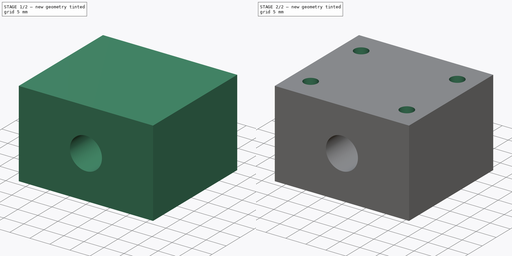
[diagram: build sequence overview — one tinted view per stage of 2, left to right]
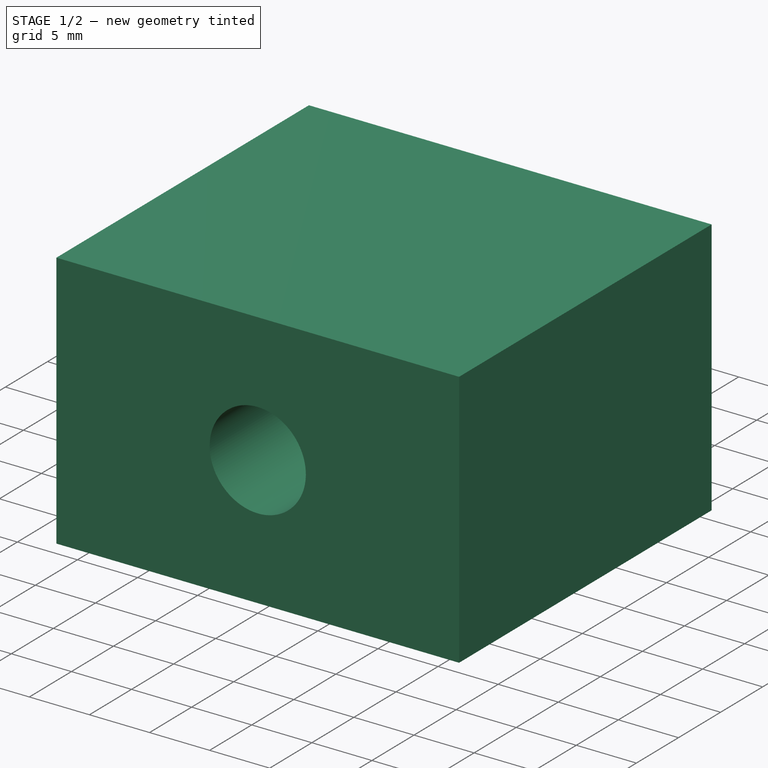
[diagram: stage 1 of 2 — iso view after this stage's code; geometry added in this stage tinted green]
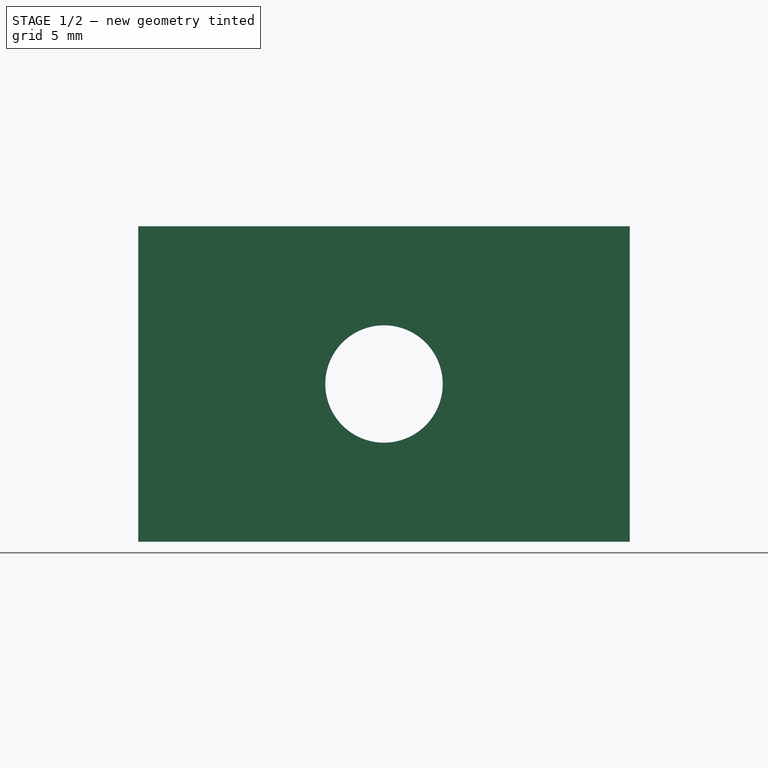
[diagram: stage 1 of 2 — front view after this stage's code; geometry added in this stage tinted green]
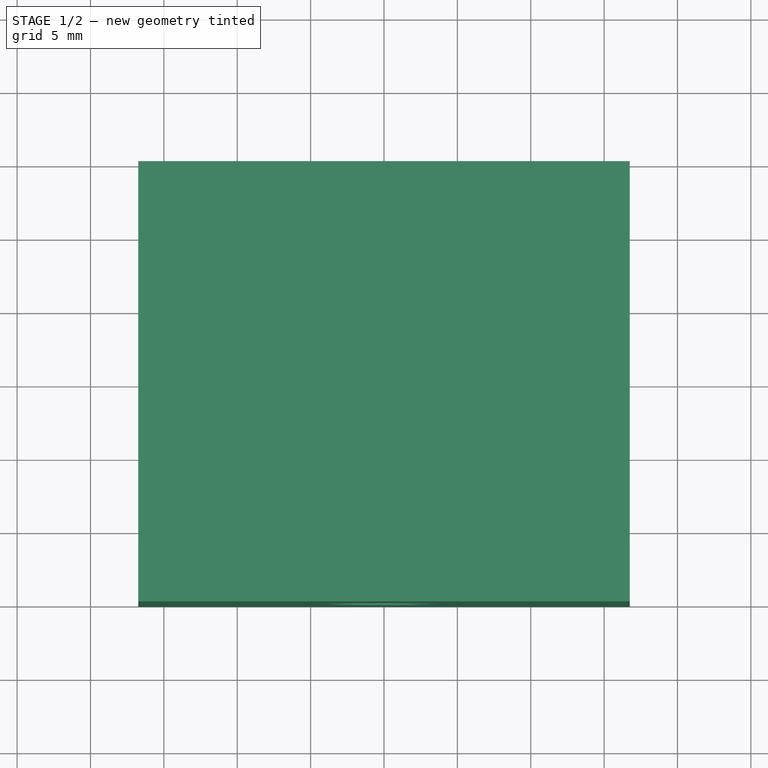
[diagram: stage 1 of 2 — top view after this stage's code; geometry added in this stage tinted green]
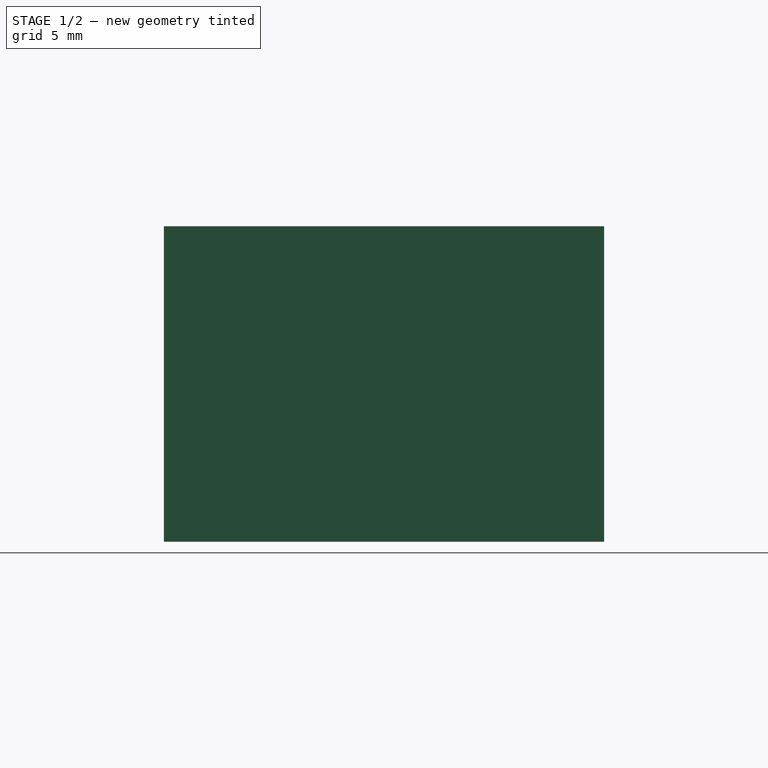
[diagram: stage 1 of 2 — right view after this stage's code; geometry added in this stage tinted green]
FCSTD DOCUMENT  (FreeCAD 0.16R6706 (Git))
Label: PillowRolamentoVeritical
License: All rights reserved
LicenseURL: http://en.wikipedia.org/wiki/All_rights_reserved
objects: Drawing::FeatureViewPython×13, Drawing::FeatureViewPart×3, Sketcher::SketchObject×2, PartDesign::Pad×1, PartDesign::Pocket×1, Drawing::FeaturePage×1
note: 6 computed .brp shape members not serialized (recipe doc carries the construction recipe); baked Part::Feature solids carry a one-line shape summary decoded from their .brp

FEATURE [Sketcher::SketchObject] Sketch
  Placement = pos=(0,0,0) rot=(1,0,0;1.5708rad)
  sketch-geometry (5):
    g0: LineSegment StartX=-16.75 StartY=10.75 StartZ=0 EndX=16.75 EndY=10.75 EndZ=0
    g1: LineSegment StartX=16.75 StartY=10.75 StartZ=0 EndX=16.75 EndY=-10.75 EndZ=0
    g2: LineSegment StartX=16.75 StartY=-10.75 StartZ=0 EndX=-16.75 EndY=-10.75 EndZ=0
    g3: LineSegment StartX=-16.75 StartY=-10.75 StartZ=0 EndX=-16.75 EndY=10.75 EndZ=0
    g4: Circle CenterX=0 CenterY=0 CenterZ=0 NormalX=0 NormalY=0 NormalZ=1 Radius=4
  constraints (13):
    c: Coincident(g0,g1)
    c: Coincident(g1,g2)
    c: Coincident(g2,g3)
    c: Coincident(g3,g0)
    c: Horizontal(g0)
    c: Horizontal(g2)
    c: Vertical(g1)
    c: Vertical(g3)
    c: Symmetric(g0,g1,g-1)
    c: DistanceX(g0,g0) = 33.5
    c: DistanceY(g1,g1) = 21.5
    c: Radius(g4) = 4
    c: Coincident(g-1,g4)
FEATURE [PartDesign::Pad] Pad
  Length = 30
  Length2 = 100
  Placement = pos=(0,0,0) rot=(1,0,0;1.5708rad)
  Sketch = -> Sketch
  Type = 0
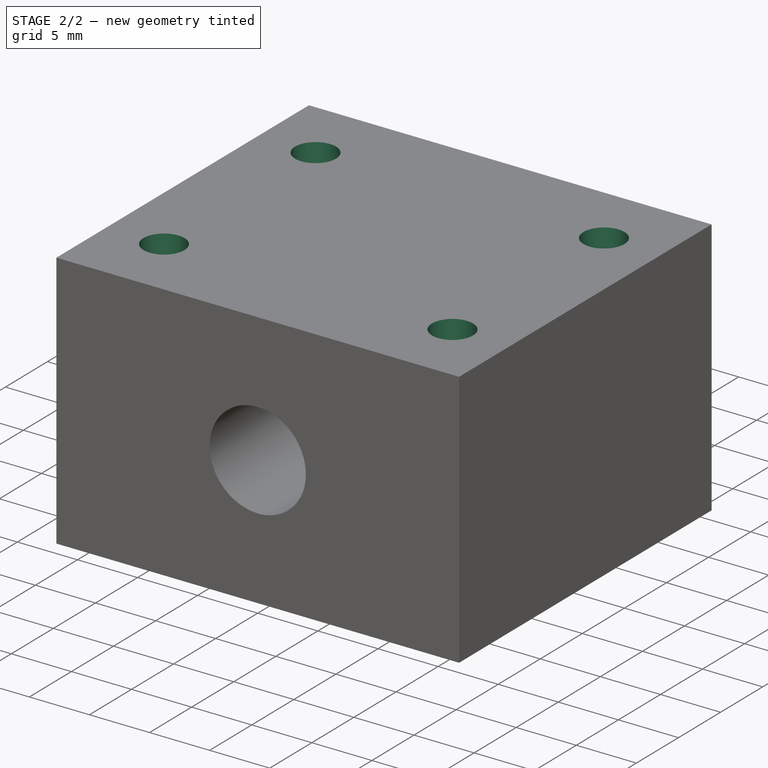
[diagram: stage 2 of 2 — iso view after this stage's code; geometry added in this stage tinted green]
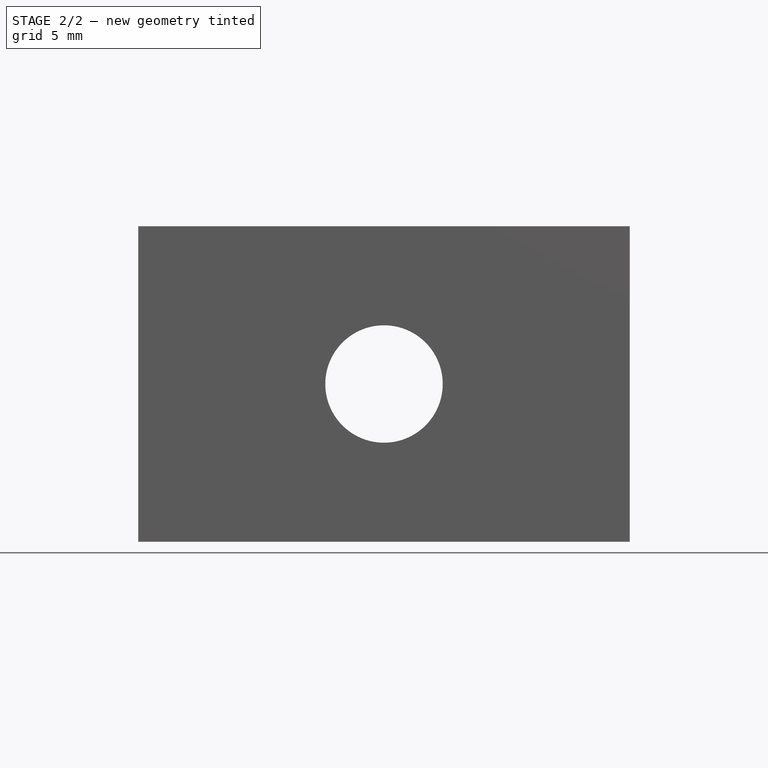
[diagram: stage 2 of 2 — front view after this stage's code; geometry added in this stage tinted green]
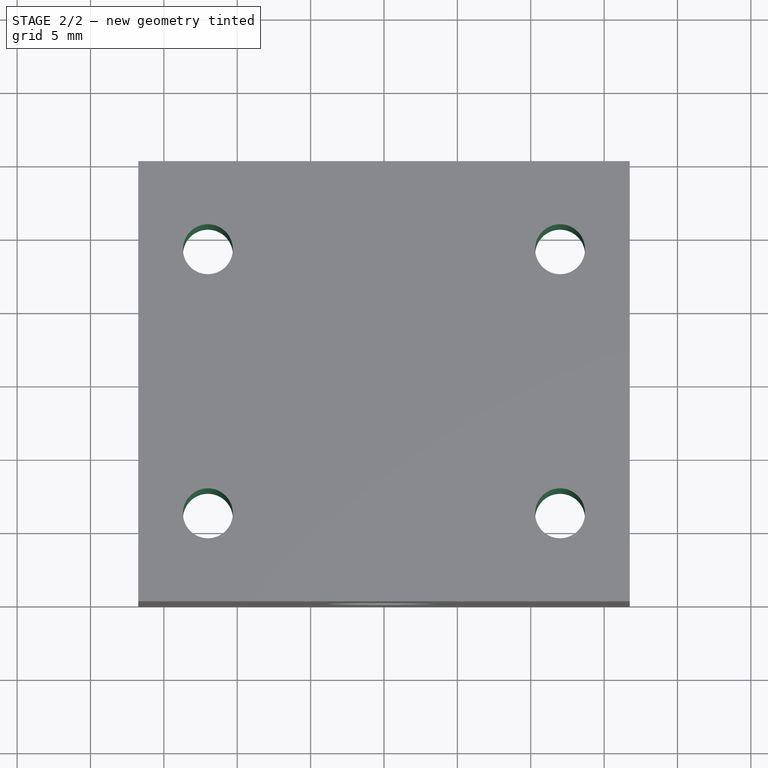
[diagram: stage 2 of 2 — top view after this stage's code; geometry added in this stage tinted green]
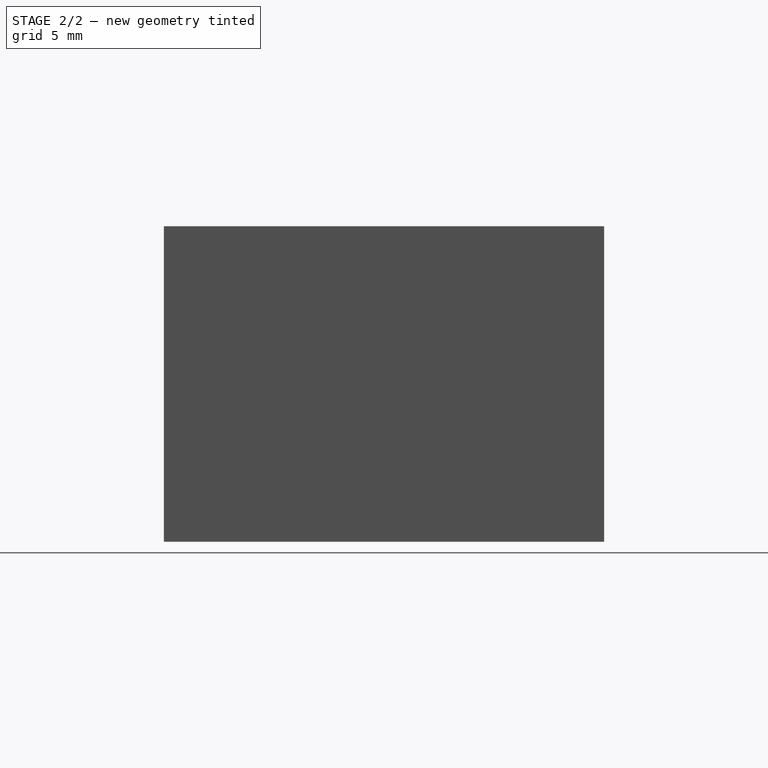
[diagram: stage 2 of 2 — right view after this stage's code; geometry added in this stage tinted green]
FEATURE [Sketcher::SketchObject] Sketch001
  ExternalGeometry = -> [Pad]
  Placement = pos=(0,0,-10.75) rot=(1,0,0;3.14159rad)
  Support = -> Pad [Face3]
  sketch-geometry (9):
    g0: LineSegment [constr] StartX=-12 StartY=24 StartZ=0 EndX=12 EndY=24 EndZ=0
    g1: LineSegment [constr] StartX=12 StartY=24 StartZ=0 EndX=12 EndY=6 EndZ=0
    g2: LineSegment [constr] StartX=12 StartY=6 StartZ=0 EndX=-12 EndY=6 EndZ=0
    g3: LineSegment [constr] StartX=-12 StartY=6 StartZ=0 EndX=-12 EndY=24 EndZ=0
    g4: Circle CenterX=-12 CenterY=24 CenterZ=0 NormalX=0 NormalY=0 NormalZ=1 Radius=1.7
    g5: Circle CenterX=12 CenterY=24 CenterZ=0 NormalX=0 NormalY=0 NormalZ=1 Radius=1.7
    g6: Circle CenterX=12 CenterY=6 CenterZ=0 NormalX=0 NormalY=0 NormalZ=1 Radius=1.7
    g7: Circle CenterX=-12 CenterY=6 CenterZ=0 NormalX=0 NormalY=0 NormalZ=1 Radius=1.7
    g8: LineSegment [constr] StartX=-13.6711 StartY=15 StartZ=0 EndX=12.5416 EndY=15 EndZ=0
  constraints (22):
    c: Coincident(g0,g1)
    c: Coincident(g1,g2)
    c: Coincident(g2,g3)
    c: Coincident(g3,g0)
    c: Horizontal(g0)
    c: Horizontal(g2)
    c: Vertical(g1)
    c: Vertical(g3)
    c: Radius(g4) = 1.7
    c: Coincident(g0,g4)
    c: Equal(g4,g5) = 1.7
    c: Equal(g4,g6) = 1.7
    c: Equal(g4,g7) = 1.7
    c: Coincident(g2,g7)
    c: Coincident(g1,g6)
    c: Coincident(g0,g5)
    c: Symmetric(g2,g1,g-2)
    c: Horizontal(g8)
    c: Symmetric(g-4,g-4,g8)
    c: Symmetric(g0,g1,g8)
    c: DistanceX(g0,g0) = 24
    c: DistanceY(g1,g1) = 18
FEATURE [PartDesign::Pocket] Pocket
  Length = 5
  Placement = pos=(0,0,0) rot=(1,0,0;1.5708rad)
  Sketch = -> Sketch001
  Type = 1
FEATURE [Drawing::FeatureViewPart] Ortho001  label="Ortho_-1_1"
  Direction = (0.57735,-0.57735,0.57735)
  HiddenWidth = 0.15
  LineWidth = 0.35
  Rotation = 60
  Scale = 2
  ShowHiddenLines = false
  ShowSmoothLines = false
  Source = -> Pocket
  Tolerance = 0.05
  ViewResult = <g id="Ortho_-1_1"\n   transform="rotate(60,82.3799,83.5859) translate(82.3799,83.5859) scale(2,2)"\n  >\n<g   stroke="rgb(0, 0, 0)"\n   stroke-width="0.175"\n   stroke-linecap="butt"\n   stroke-linejoin="miter"\n   fill="none"\n   transform="scale(1,-1)"\n  >\n<path id= "1" d=" M -19.4454 -2.44949 L -19.4454 -26.9444 " />\n<path id= "2" d=" M -19.4454 -2.44949 L 4.24264 11.2268 " />\n<path id= "3" d=" M -19.4454 -26.9444 L 4.24264 -13.2681 " />\n<path id= "4" d=" M 4.24264 11.2268 L 4.24264 -13.2681 " />\n<path d="M-14.8846 -19.4122 A1.7 0.981495 -120 0 0 -16.9367 -21.5785" />\n<path d="M-16.9367 -21.5785 A1.7 0.981495 -120 0 0 -15.2367 -18.634" />\n<path d="M-15.2367 -18.634 A1.7 0.981495 -120 0 0 -14.8846 -19.4122" />\n<path d="M2.08597 -9.61425 A1.7 0.981495 -120 0 0 0.0338835 -11.7805" />\n<path d="M0.0338835 -11.7805 A1.7 0.981495 -120 0 0 1.73388 -8.83603" />\n<path d="M1.73388 -8.83603 A1.7 0.981495 -120 0 0 2.08597 -9.61425" />\n<path d="M-14.8846 -4.71527 A1.7 0.981495 -120 0 0 -16.9367 -6.88153" />\n<path d="M-16.9367 -6.88153 A1.7 0.981495 -120 0 0 -15.2367 -3.93705" />\n<path d="M-15.2367 -3.93705 A1.7 0.981495 -120 0 0 -14.8846 -4.71527" />\n<path d="M2.08597 5.08269 A1.7 0.981495 -120 0 0 0.0338835 2.91643" />\n<path d="M0.0338835 2.91643 A1.7 0.981495 -120 0 0 1.73388 5.86091" />\n<path d="M1.73388 5.86091 A1.7 0.981495 -120 0 0 2.08597 5.08269" />\n<path id= "17" d=" M -4.24264 -35.7217 L -19.4454 -26.9444 " />\n<path id= "18" d=" M 4.24264 11.2268 L 19.4454 2.44949 " />\n<path id= "19" d=" M 4.24264 -13.2681 L 19.4454 -22.0454 " />\n<path id= "20" d=" M 19.4454 -22.0454 L -4.24264 -35.7217 " />\n<path d="M2.82843 -22.8619 A4 2.3094 180 0 1 -4 -24.4949" />\n<path d="M-4 -24.4949 A4 2.3094 180 1 1 4 -24.4949" />\n<path d="M4 -24.4949 A4 2.3094 180 0 1 2.82843 -22.8619" />\n<path id= "24" d=" M 19.4454 2.44949 L 19.4454 -22.0454 " />\n</g>\n</g>
  Visible = true
  X = 82.3799
  Y = 83.5859
FEATURE [Drawing::FeatureViewPart] Ortho002  label="Ortho_0_1"
  Direction = (0,0,1)
  HiddenWidth = 0.15
  LineWidth = 0.35
  Rotation = 90
  Scale = 2
  ShowHiddenLines = false
  ShowSmoothLines = false
  Source = -> Pocket
  Tolerance = 0.05
  ViewResult = <g id="Ortho_0_1"\n   transform="rotate(90,182.333,95.8333) translate(182.333,95.8333) scale(2,2)"\n  >\n<g   stroke="rgb(0, 0, 0)"\n   stroke-width="0.175"\n   stroke-linecap="butt"\n   stroke-linejoin="miter"\n   fill="none"\n   transform="scale(1,-1)"\n  >\n<path id= "1" d=" M -16.75 1.19349e-014 L -16.75 -30 " />\n<path id= "2" d=" M -16.75 1.19349e-014 L 16.75 1.19349e-014 " />\n<path id= "3" d=" M -16.75 -30 L 16.75 -30 " />\n<path id= "4" d=" M 16.75 1.19349e-014 L 16.75 -30 " />\n<circle cx ="-12" cy ="-24" r ="1.7" /><circle cx ="12" cy ="-24" r ="1.7" /><circle cx ="-12" cy ="-6" r ="1.7" /><circle cx ="12" cy ="-6" r ="1.7" /><path d="M4,-30 L3.89971,-30  L3.60388,-30  L3.12733,-30  L2.49396,-30  L1.73553,-30  L0.890084,-30  L2.44929e-016,-30  L-0.890084,-30  L-1.73553,-30  L-2.49396,-30  L-3.12733,-30  L-3.60388,-30  L-3.89971,-30  L-4,-30 " /></g>\n</g>
  Visible = true
  X = 182.333
  Y = 95.8333
FEATURE [Drawing::FeatureViewPart] Ortho003  label="Ortho_-1_0"
  Direction = (0,-1,0)
  HiddenWidth = 0.15
  LineWidth = 0.35
  Rotation = 90
  Scale = 2
  ShowHiddenLines = false
  ShowSmoothLines = false
  Source = -> Pocket
  Tolerance = 0.05
  ViewResult = <g id="Ortho_-1_0"\n   transform="rotate(90,61.1667,213.167) translate(61.1667,213.167) scale(2,2)"\n  >\n<g   stroke="rgb(0, 0, 0)"\n   stroke-width="0.175"\n   stroke-linecap="butt"\n   stroke-linejoin="miter"\n   fill="none"\n   transform="scale(1,-1)"\n  >\n<path id= "1" d=" M -10.75 -16.75 L -10.75 16.75 " />\n<path id= "2" d=" M 10.75 -16.75 L -10.75 -16.75 " />\n<path id= "3" d=" M -10.75 16.75 L 10.75 16.75 " />\n<path id= "4" d=" M 10.75 16.75 L 10.75 -16.75 " />\n<circle cx ="-2.66454e-014" cy ="0" r ="4" /></g>\n</g>
  Visible = true
  X = 61.1667
  Y = 213.167
FEATURE [Drawing::FeatureViewPython] dim001  # drawing view (typed FeaturePython)
  Rotation = 0
  ViewResult = <g> \n  <line x1="96.666700" y1="191.667000" x2="116.950466" y2="191.667000" style="stroke:rgb(0,0,255);stroke-width:0.50" />\n<line x1="96.666700" y1="234.667000" x2="116.950466" y2="234.667000" style="stroke:rgb(0,0,255);stroke-width:0.50" />\n<line x1="115.950466" y1="191.667000" x2="115.950466" y2="234.667000" style="stroke:rgb(0,0,255);stroke-width:0.50" /> \n  <polygon points="115.950466,234.667000 116.950466,231.667000 115.950466,230.667000 114.950466,231.667000" style="fill:rgb(0,0,255);stroke:rgb(0,0,255);stroke-width:0" /><polygon points="115.950466,191.667000 114.950466,194.667000 115.950466,195.667000 116.950466,194.667000" style="fill:rgb(0,0,255);stroke:rgb(0,0,255);stroke-width:0" /> \n  <text x="113.950466" y="213.167000" font-family="inherit" font-size="3.6" fill="rgb(0,0,255)" text-anchor="middle" transform="rotate(-90.000000 113.950466,213.167000)" >21.5</text> </g>
  Visible = true
  X = 0
  Y = 0
  arrowL1 = 3
  arrowL2 = 1
  arrowW = 2
  arrow_scheme = 0
  autoPlaceOffset = 2
  autoPlaceText = true
  click1_x = 115.95
  click1_y = 232.585
  click2_x = 115.95
  click2_y = 232.585
  comma_decimal_place = false
  dimension_line_overshoot = 1
  gap_datum_points = 2
  halfDimension_linear = false
  lineColor = rgb(0,0,255)
  strokeWidth = 0.5
  textFormat_linear = %(value)3.3f
  textRenderer_color = rgb(0,0,255)
  textRenderer_family = inherit
  textRenderer_size = 3.6
  unit_custom_scale = 1
  unit_scheme = 0
FEATURE [Drawing::FeatureViewPython] dim002  # drawing view (typed FeaturePython)
  Rotation = 0
  ViewResult = <g> \n  <line x1="94.666700" y1="189.667000" x2="94.666700" y2="173.096718" style="stroke:rgb(0,0,255);stroke-width:0.50" />\n<line x1="27.666700" y1="189.667000" x2="27.666700" y2="173.096718" style="stroke:rgb(0,0,255);stroke-width:0.50" />\n<line x1="94.666700" y1="174.096718" x2="27.666700" y2="174.096718" style="stroke:rgb(0,0,255);stroke-width:0.50" /> \n  <polygon points="27.666700,174.096718 30.666700,175.096718 31.666700,174.096718 30.666700,173.096718" style="fill:rgb(0,0,255);stroke:rgb(0,0,255);stroke-width:0" /><polygon points="94.666700,174.096718 91.666700,173.096718 90.666700,174.096718 91.666700,175.096718" style="fill:rgb(0,0,255);stroke:rgb(0,0,255);stroke-width:0" /> \n  <text x="61.166700" y="172.096718" font-family="inherit" font-size="3.6" fill="rgb(0,0,255)" text-anchor="middle" transform="rotate(0.000000 61.166700,172.096718)" >33.5</text> </g>
  Visible = true
  X = 0
  Y = 0
  arrowL1 = 3
  arrowL2 = 1
  arrowW = 2
  arrow_scheme = 0
  autoPlaceOffset = 2
  autoPlaceText = true
  click1_x = 31.8094
  click1_y = 174.097
  click2_x = 31.8094
  click2_y = 174.097
  comma_decimal_place = false
  dimension_line_overshoot = 1
  gap_datum_points = 2
  halfDimension_linear = false
  lineColor = rgb(0,0,255)
  strokeWidth = 0.5
  textFormat_linear = %(value)3.3f
  textRenderer_color = rgb(0,0,255)
  textRenderer_family = inherit
  textRenderer_size = 3.6
  unit_custom_scale = 1
  unit_scheme = 0
FEATURE [Drawing::FeatureViewPython] dim003  # drawing view (typed FeaturePython)
  Rotation = 0
  ViewResult = <g> \n  <line x1="63.166700" y1="213.167000" x2="106.005290" y2="213.167000" style="stroke:rgb(0,0,255);stroke-width:0.50" />\n<line x1="96.666700" y1="234.667000" x2="106.005290" y2="234.667000" style="stroke:rgb(0,0,255);stroke-width:0.50" />\n<line x1="105.005290" y1="213.167000" x2="105.005290" y2="234.667000" style="stroke:rgb(0,0,255);stroke-width:0.50" /> \n  <polygon points="105.005290,234.667000 106.005290,231.667000 105.005290,230.667000 104.005290,231.667000" style="fill:rgb(0,0,255);stroke:rgb(0,0,255);stroke-width:0" /><polygon points="105.005290,213.167000 104.005290,216.167000 105.005290,217.167000 106.005290,216.167000" style="fill:rgb(0,0,255);stroke:rgb(0,0,255);stroke-width:0" /> \n  <text x="103.005290" y="223.917000" font-family="inherit" font-size="3.6" fill="rgb(0,0,255)" text-anchor="middle" transform="rotate(-90.000000 103.005290,223.917000)" >10.75</text> </g>
  Visible = true
  X = 0
  Y = 0
  arrowL1 = 3
  arrowL2 = 1
  arrowW = 2
  arrow_scheme = 0
  autoPlaceOffset = 2
  autoPlaceText = true
  click1_x = 105.005
  click1_y = 230.191
  click2_x = 105.005
  click2_y = 230.191
  comma_decimal_place = false
  dimension_line_overshoot = 1
  gap_datum_points = 2
  halfDimension_linear = false
  lineColor = rgb(0,0,255)
  strokeWidth = 0.5
  textFormat_linear = %(value)3.3f
  textRenderer_color = rgb(0,0,255)
  textRenderer_family = inherit
  textRenderer_size = 3.6
  unit_custom_scale = 1
  unit_scheme = 0
FEATURE [Drawing::FeatureViewPython] dim004  # drawing view (typed FeaturePython)
  Rotation = 0
  ViewResult = <g> \n  <line x1="172.333000" y1="71.833300" x2="179.619204" y2="71.833300" style="stroke:rgb(0,0,255);stroke-width:0.50" />\n<line x1="172.333000" y1="119.833300" x2="179.619204" y2="119.833300" style="stroke:rgb(0,0,255);stroke-width:0.50" />\n<line x1="178.619204" y1="71.833300" x2="178.619204" y2="119.833300" style="stroke:rgb(0,0,255);stroke-width:0.50" /> \n  <polygon points="178.619204,119.833300 179.619204,116.833300 178.619204,115.833300 177.619204,116.833300" style="fill:rgb(0,0,255);stroke:rgb(0,0,255);stroke-width:0" /><polygon points="178.619204,71.833300 177.619204,74.833300 178.619204,75.833300 179.619204,74.833300" style="fill:rgb(0,0,255);stroke:rgb(0,0,255);stroke-width:0" /> \n  <text x="176.619204" y="95.833300" font-family="inherit" font-size="3.6" fill="rgb(0,0,255)" text-anchor="middle" transform="rotate(-90.000000 176.619204,95.833300)" >24</text> </g>
  Visible = true
  X = 0
  Y = 0
  arrowL1 = 3
  arrowL2 = 1
  arrowW = 2
  arrow_scheme = 0
  autoPlaceOffset = 2
  autoPlaceText = true
  click1_x = 178.619
  click1_y = 119.475
  click2_x = 178.619
  click2_y = 119.475
  comma_decimal_place = false
  dimension_line_overshoot = 1
  gap_datum_points = 2
  halfDimension_linear = false
  lineColor = rgb(0,0,255)
  strokeWidth = 0.5
  textFormat_linear = %(value)3.3f
  textRenderer_color = rgb(0,0,255)
  textRenderer_family = inherit
  textRenderer_size = 3.6
  unit_custom_scale = 1
  unit_scheme = 0
FEATURE [Drawing::FeatureViewPython] dim005  # drawing view (typed FeaturePython)
  Rotation = 0
  ViewResult = <g> \n  <line x1="172.333000" y1="119.833300" x2="193.633211" y2="119.833300" style="stroke:rgb(0,0,255);stroke-width:0.50" />\n<line x1="184.333000" y1="129.333300" x2="193.633211" y2="129.333300" style="stroke:rgb(0,0,255);stroke-width:0.50" />\n<line x1="192.633211" y1="119.833300" x2="192.633211" y2="129.333300" style="stroke:rgb(0,0,255);stroke-width:0.50" /> \n  <polygon points="192.633211,129.333300 191.633211,132.333300 192.633211,133.333300 193.633211,132.333300" style="fill:rgb(0,0,255);stroke:rgb(0,0,255);stroke-width:0" /><polygon points="192.633211,119.833300 193.633211,116.833300 192.633211,115.833300 191.633211,116.833300" style="fill:rgb(0,0,255);stroke:rgb(0,0,255);stroke-width:0" /> \n  <text x="190.633211" y="124.583300" font-family="inherit" font-size="3.6" fill="rgb(0,0,255)" text-anchor="middle" transform="rotate(-90.000000 190.633211,124.583300)" >4.75</text> </g>
  Visible = true
  X = 0
  Y = 0
  arrowL1 = 3
  arrowL2 = 1
  arrowW = 2
  arrow_scheme = 0
  autoPlaceOffset = 2
  autoPlaceText = true
  click1_x = 192.633
  click1_y = 128.501
  click2_x = 192.633
  click2_y = 128.501
  comma_decimal_place = false
  dimension_line_overshoot = 1
  gap_datum_points = 2
  halfDimension_linear = false
  lineColor = rgb(0,0,255)
  strokeWidth = 0.5
  textFormat_linear = %(value)3.3f
  textRenderer_color = rgb(0,0,255)
  textRenderer_family = inherit
  textRenderer_size = 3.6
  unit_custom_scale = 1
  unit_scheme = 0
FEATURE [Drawing::FeatureViewPython] dim006  # drawing view (typed FeaturePython)
  Rotation = 0
  ViewResult = <g> \n  <line x1="182.333000" y1="60.333300" x2="182.333000" y2="51.968195" style="stroke:rgb(0,0,255);stroke-width:0.50" />\n<line x1="170.333000" y1="69.833300" x2="170.333000" y2="51.968195" style="stroke:rgb(0,0,255);stroke-width:0.50" />\n<line x1="182.333000" y1="52.968195" x2="170.333000" y2="52.968195" style="stroke:rgb(0,0,255);stroke-width:0.50" /> \n  <polygon points="170.333000,52.968195 173.333000,53.968195 174.333000,52.968195 173.333000,51.968195" style="fill:rgb(0,0,255);stroke:rgb(0,0,255);stroke-width:0" /><polygon points="182.333000,52.968195 179.333000,51.968195 178.333000,52.968195 179.333000,53.968195" style="fill:rgb(0,0,255);stroke:rgb(0,0,255);stroke-width:0" /> \n  <text x="176.333000" y="50.968195" font-family="inherit" font-size="3.6" fill="rgb(0,0,255)" text-anchor="middle" transform="rotate(0.000000 176.333000,50.968195)" >6</text> </g>
  Visible = true
  X = 0
  Y = 0
  arrowL1 = 3
  arrowL2 = 1
  arrowW = 2
  arrow_scheme = 0
  autoPlaceOffset = 2
  autoPlaceText = true
  click1_x = 173.394
  click1_y = 52.9682
  click2_x = 173.394
  click2_y = 52.9682
  comma_decimal_place = false
  dimension_line_overshoot = 1
  gap_datum_points = 2
  halfDimension_linear = false
  lineColor = rgb(0,0,255)
  strokeWidth = 0.5
  textFormat_linear = %(value)3.3f
  textRenderer_color = rgb(0,0,255)
  textRenderer_family = inherit
  textRenderer_size = 3.6
  unit_custom_scale = 1
  unit_scheme = 0
FEATURE [Drawing::FeatureViewPython] dim007  # drawing view (typed FeaturePython)
  Rotation = 0
  ViewResult = <g> \n  <line x1="170.333000" y1="69.833300" x2="170.333000" y2="41.042020" style="stroke:rgb(0,0,255);stroke-width:0.50" />\n<line x1="134.333000" y1="69.833300" x2="134.333000" y2="41.042020" style="stroke:rgb(0,0,255);stroke-width:0.50" />\n<line x1="170.333000" y1="42.042020" x2="134.333000" y2="42.042020" style="stroke:rgb(0,0,255);stroke-width:0.50" /> \n  <polygon points="134.333000,42.042020 137.333000,43.042020 138.333000,42.042020 137.333000,41.042020" style="fill:rgb(0,0,255);stroke:rgb(0,0,255);stroke-width:0" /><polygon points="170.333000,42.042020 167.333000,41.042020 166.333000,42.042020 167.333000,43.042020" style="fill:rgb(0,0,255);stroke:rgb(0,0,255);stroke-width:0" /> \n  <text x="152.333000" y="40.042020" font-family="inherit" font-size="3.6" fill="rgb(0,0,255)" text-anchor="middle" transform="rotate(0.000000 152.333000,40.042020)" >18</text> </g>
  Visible = true
  X = 0
  Y = 0
  arrowL1 = 3
  arrowL2 = 1
  arrowW = 2
  arrow_scheme = 0
  autoPlaceOffset = 2
  autoPlaceText = true
  click1_x = 135.39
  click1_y = 42.042
  click2_x = 135.39
  click2_y = 42.042
  comma_decimal_place = false
  dimension_line_overshoot = 1
  gap_datum_points = 2
  halfDimension_linear = false
  lineColor = rgb(0,0,255)
  strokeWidth = 0.5
  textFormat_linear = %(value)3.3f
  textRenderer_color = rgb(0,0,255)
  textRenderer_family = inherit
  textRenderer_size = 3.6
  unit_custom_scale = 1
  unit_scheme = 0
FEATURE [Drawing::FeatureViewPython] dim008  # drawing view (typed FeaturePython)
  Rotation = 0
  ViewResult = <g> \n  <line x1="107.067941" y1="116.548882" x2="117.959476" y2="135.413574" style="stroke:rgb(0,0,255);stroke-width:0.50" />\n<line x1="64.641547" y1="141.043772" x2="75.533082" y2="159.908464" style="stroke:rgb(0,0,255);stroke-width:0.50" />\n<line x1="117.459476" y1="134.547548" x2="75.033082" y2="159.042438" style="stroke:rgb(0,0,255);stroke-width:0.50" /> \n  <polygon points="75.033082,159.042438 78.131158,158.408464 78.497184,157.042438 77.131158,156.676413" style="fill:rgb(0,0,255);stroke:rgb(0,0,255);stroke-width:0" /><polygon points="117.459476,134.547548 114.361400,135.181523 113.995374,136.547548 115.361400,136.913574" style="fill:rgb(0,0,255);stroke:rgb(0,0,255);stroke-width:0" /> \n  <text x="95.246279" y="145.062942" font-family="inherit" font-size="3.6" fill="rgb(0,0,255)" text-anchor="middle" transform="rotate(-30.000000 95.246279,145.062942)" >30</text> </g>
  Visible = true
  X = 0
  Y = 0
  arrowL1 = 3
  arrowL2 = 1
  arrowW = 2
  arrow_scheme = 0
  autoPlaceOffset = 2
  autoPlaceText = true
  click1_x = 107.362
  click1_y = 140.378
  click2_x = 107.362
  click2_y = 140.378
  comma_decimal_place = false
  dimension_line_overshoot = 1
  gap_datum_points = 2
  halfDimension_linear = false
  lineColor = rgb(0,0,255)
  strokeWidth = 0.5
  textFormat_linear = 30
  textRenderer_color = rgb(0,0,255)
  textRenderer_family = inherit
  textRenderer_size = 3.6
  unit_custom_scale = 1
  unit_scheme = 0
FEATURE [Drawing::FeatureViewPython] dim009  # drawing view (typed FeaturePython)
  Rotation = 0
  ViewResult = <g> \n  <line x1="32.468164" y1="74.097153" x2="41.207353" y2="58.960415" style="stroke:rgb(0,0,255);stroke-width:0.50" />\n<line x1="66.409326" y1="93.693067" x2="75.148515" y2="78.556329" style="stroke:rgb(0,0,255);stroke-width:0.50" />\n<line x1="40.707354" y1="59.826441" x2="74.648515" y2="79.422354" style="stroke:rgb(0,0,255);stroke-width:0.50" /> \n  <polygon points="74.648515,79.422354 72.550438,77.056330 71.184413,77.422356 71.550439,78.788381" style="fill:rgb(0,0,255);stroke:rgb(0,0,255);stroke-width:0" /><polygon points="40.707354,59.826441 42.805431,62.192465 44.171456,61.826439 43.805430,60.460413" style="fill:rgb(0,0,255);stroke:rgb(0,0,255);stroke-width:0" /> \n  <text x="55.945883" y="68.624398" font-family="inherit" font-size="3.6" fill="rgb(0,0,255)" text-anchor="middle" transform="rotate(-60.000032 55.945883,68.624398)" >24</text> </g>
  Visible = true
  X = 0
  Y = 0
  arrowL1 = 3
  arrowL2 = 1
  arrowW = 2
  arrow_scheme = 0
  autoPlaceOffset = 2
  autoPlaceText = true
  click1_x = 65.6494
  click1_y = 74.2267
  click2_x = 65.6494
  click2_y = 74.2267
  comma_decimal_place = false
  dimension_line_overshoot = 1
  gap_datum_points = 2
  halfDimension_linear = false
  lineColor = rgb(0,0,255)
  strokeWidth = 0.5
  textFormat_linear = 24
  textRenderer_color = rgb(0,0,255)
  textRenderer_family = inherit
  textRenderer_size = 3.6
  unit_custom_scale = 1
  unit_scheme = 0
FEATURE [Drawing::FeatureViewPython] dim010  # drawing view (typed FeaturePython)
  Rotation = 0
  ViewResult = <g> \n  <line x1="30.468165" y1="74.097154" x2="22.420874" y2="60.158837" style="stroke:rgb(0,0,255);stroke-width:0.50" />\n<line x1="55.924029" y1="59.400204" x2="47.876738" y2="45.461887" style="stroke:rgb(0,0,255);stroke-width:0.50" />\n<line x1="22.920874" y1="61.024862" x2="48.376738" y2="46.327912" style="stroke:rgb(0,0,255);stroke-width:0.50" /> \n  <polygon points="48.376738,46.327912 45.278662,46.961887 44.912637,48.327912 46.278662,48.693938" style="fill:rgb(0,0,255);stroke:rgb(0,0,255);stroke-width:0" /><polygon points="22.920874,61.024862 26.018950,60.390888 26.384976,59.024862 25.018950,58.658837" style="fill:rgb(0,0,255);stroke:rgb(0,0,255);stroke-width:0" /> \n  <text x="34.648806" y="51.944336" font-family="inherit" font-size="3.6" fill="rgb(0,0,255)" text-anchor="middle" transform="rotate(-30.000000 34.648806,51.944336)" >18</text> </g>
  Visible = true
  X = 0
  Y = 0
  arrowL1 = 3
  arrowL2 = 1
  arrowW = 2
  arrow_scheme = 0
  autoPlaceOffset = 2
  autoPlaceText = true
  click1_x = 29.1958
  click1_y = 57.402
  click2_x = 29.1958
  click2_y = 57.402
  comma_decimal_place = false
  dimension_line_overshoot = 1
  gap_datum_points = 2
  halfDimension_linear = false
  lineColor = rgb(0,0,255)
  strokeWidth = 0.5
  textFormat_linear = 18
  textRenderer_color = rgb(0,0,255)
  textRenderer_family = inherit
  textRenderer_size = 3.6
  unit_custom_scale = 1
  unit_scheme = 0
FEATURE [Drawing::FeatureViewPython] text001  # drawing view (typed FeaturePython)
  Rotation = 0
  ViewResult = <g> <text x="50.963479" y="15.391655" font-family="inherit" font-size="5" fill="rgb(0,0,0)" text-anchor="inherit" transform="rotate(0.000000 50.963479,15.391655)" >Pillow Rolamento</text> </g>
  Visible = true
  X = 0
  Y = 0
  click1_x = 50.9635
  click1_y = 15.3917
  rotation = 0
  text = Pillow Rolamento
  textRenderer_addText_color = rgb(0,0,0)
  textRenderer_addText_family = inherit
  textRenderer_addText_size = 5
FEATURE [Drawing::FeatureViewPython] rad001  # drawing view (typed FeaturePython)
  Rotation = 0
  ViewResult = <g>  <circle cx ="134.333000" cy ="119.833300" r="0.250000" stroke="none" fill="rgb(0,0,255)" /> \n<line x1="133.736379" y1="145.023592" x2="134.333000" y2="119.833300" style="stroke:rgb(0,0,255);stroke-width:0.50" />\n<polygon points="134.252495,116.434253 135.181181,113.411416 134.157783,112.435375 133.181742,113.458772" style="fill:rgb(0,0,255);stroke:rgb(0,0,255);stroke-width:0" />\n<line x1="133.736379" y1="145.023592" x2="151.864328" y2="145.023592" style="stroke:rgb(0,0,255);stroke-width:0.50" />\n<text x="142.800353" y="143.023592" font-family="inherit" font-size="3.6" fill="rgb(0,0,255)" text-anchor="middle" transform="rotate(0.000000 142.800353,143.023592)" >R1.7</text> </g>
  Visible = true
  X = 0
  Y = 0
  arrowL1 = 3
  arrowL2 = 1
  arrowW = 2
  arrow_scheme = 0
  autoPlaceOffset = 2
  autoPlaceText = true
  centerPointDia = 0.5
  click1_x = 133.736
  click1_y = 145.024
  click2_x = 151.864
  click2_y = 147.076
  click3_x = 151.864
  click3_y = 147.076
  comma_decimal_place = false
  lineColor = rgb(0,0,255)
  strokeWidth = 0.5
  textFormat_radial = R%(value)3.3f
  textRenderer_color = rgb(0,0,255)
  textRenderer_family = inherit
  textRenderer_size = 3.6
  unit_custom_scale = 1
  unit_scheme = 0
FEATURE [Drawing::FeatureViewPython] rad002  # drawing view (typed FeaturePython)
  Rotation = 0
  ViewResult = <g>  <circle cx ="61.166700" cy ="213.167000" r="0.250000" stroke="none" fill="rgb(0,0,255)" /> \n<line x1="54.725884" y1="247.976661" x2="61.166700" y2="213.167000" style="stroke:rgb(0,0,255);stroke-width:0.50" />\n<polygon points="59.711170,205.300525 59.273684,208.432394 60.438935,209.233762 61.240303,208.068512" style="fill:rgb(0,0,255);stroke:rgb(0,0,255);stroke-width:0" />\n<line x1="54.725884" y1="247.976661" x2="81.746789" y2="247.976661" style="stroke:rgb(0,0,255);stroke-width:0.50" />\n<text x="68.236336" y="245.976661" font-family="inherit" font-size="3.6" fill="rgb(0,0,255)" text-anchor="middle" transform="rotate(0.000000 68.236336,245.976661)" >R4</text> </g>
  Visible = true
  X = 0
  Y = 0
  arrowL1 = 3
  arrowL2 = 1
  arrowW = 2
  arrow_scheme = 0
  autoPlaceOffset = 2
  autoPlaceText = true
  centerPointDia = 0.5
  click1_x = 54.7259
  click1_y = 247.977
  click2_x = 81.7468
  click2_y = 246.951
  click3_x = 81.7468
  click3_y = 246.951
  comma_decimal_place = false
  lineColor = rgb(0,0,255)
  strokeWidth = 0.5
  textFormat_radial = R%(value)3.3f
  textRenderer_color = rgb(0,0,255)
  textRenderer_family = inherit
  textRenderer_size = 3.6
  unit_custom_scale = 1
  unit_scheme = 0
FEATURE [Drawing::FeaturePage] Page
  Group = -> [Ortho001,Ortho002,Ortho003,dim001,dim002,dim003,dim004,dim005,dim006,dim007,dim008,dim009,dim010,text001,rad001,rad002]
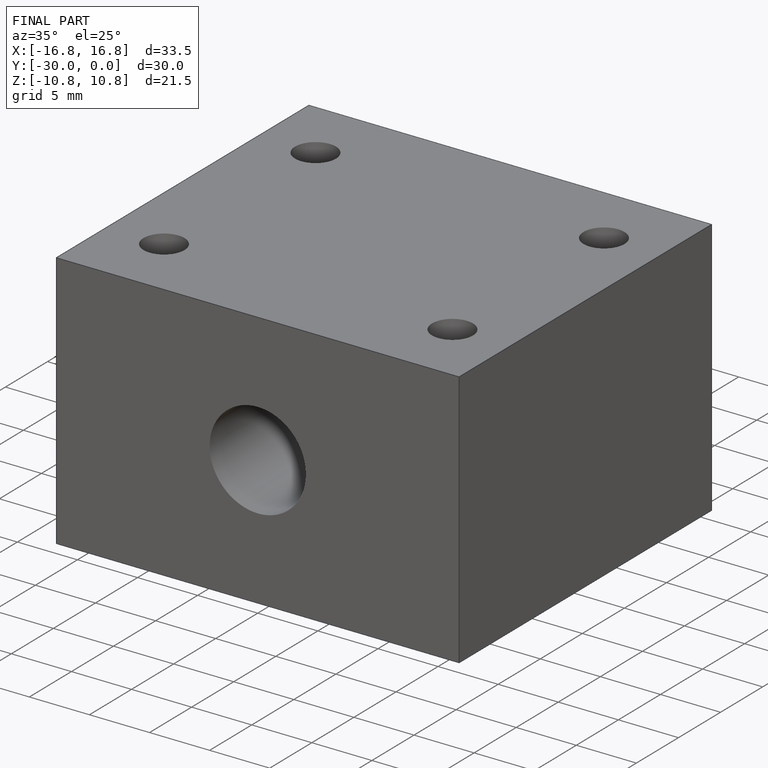
[diagram: finished part — iso view with bounding-box wireframe]
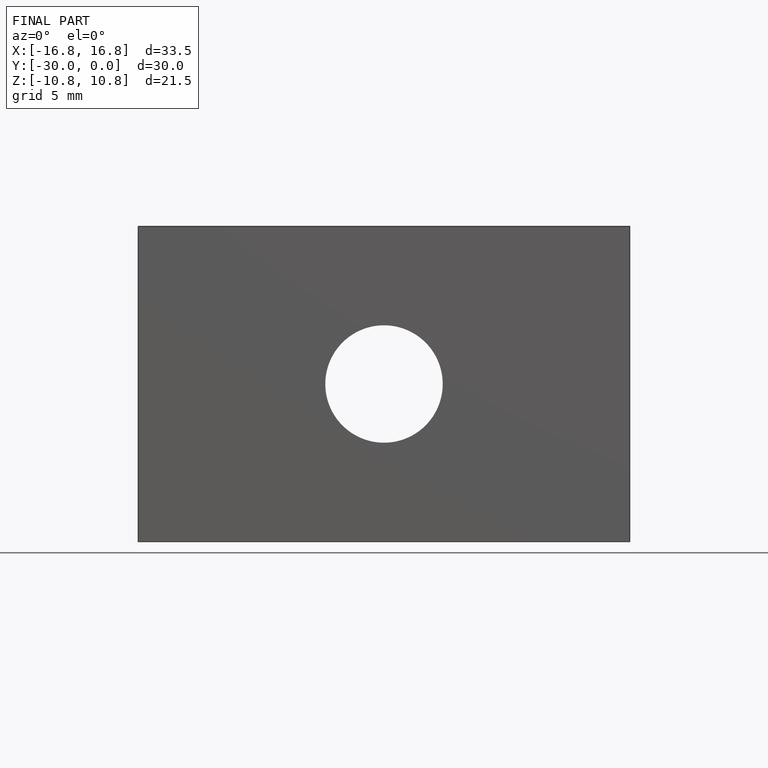
[diagram: finished part — front view with bounding-box wireframe]
